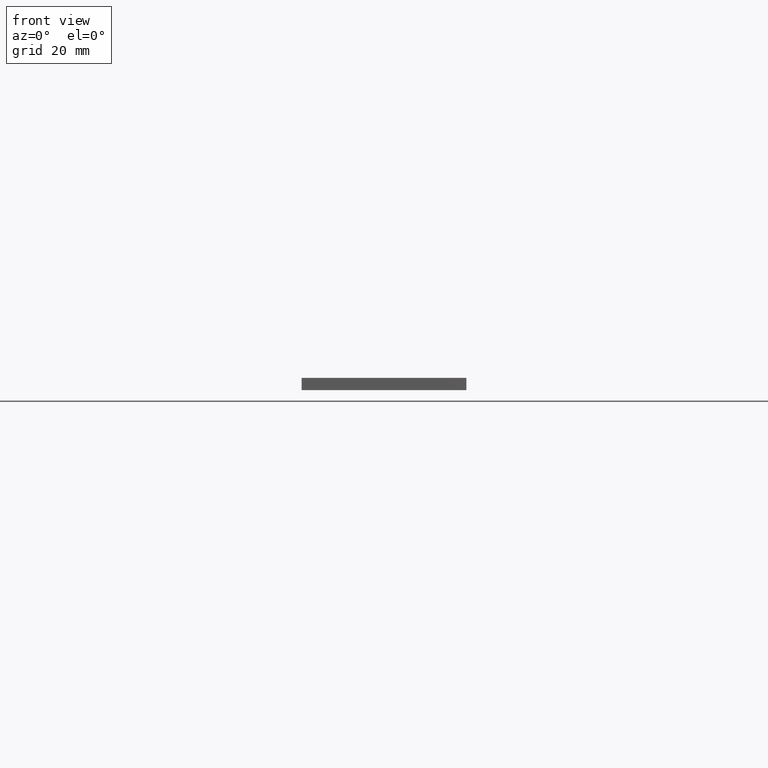
[diagram: clean part render]
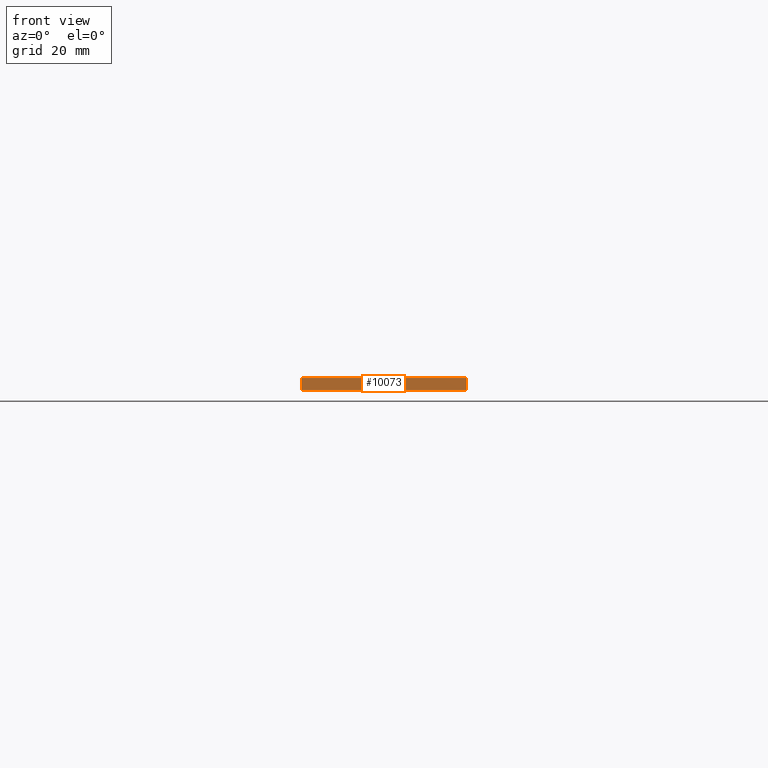
[diagram: same view with one face highlighted and labeled with its STEP entity id]
A machine part, front view. The second image highlights one B-rep face of the part: STEP entity #10073.
In plain terms, the highlighted planar face has unit normal (0, 1, 0).
Its self-contained STEP definition (entity closure, byte-faithful):
#663 = VECTOR ( 'NONE', #4678, 1000.000000000000000 ) ;
#869 = VERTEX_POINT ( 'NONE', #4589 ) ;
#1028 = VERTEX_POINT ( 'NONE', #5074 ) ;
#2348 = DIRECTION ( 'NONE',  ( -0.000000000000000000, -0.000000000000000000, -1.000000000000000000 ) ) ;
#2578 = FACE_OUTER_BOUND ( 'NONE', #9258, .T. ) ;
#3065 = ORIENTED_EDGE ( 'NONE', *, *, #14875, .T. ) ;
#3222 = CARTESIAN_POINT ( 'NONE',  ( 20.00000000000000355, -86.50000000000000000, 3.000000000000000000 ) ) ;
#3845 = LINE ( 'NONE', #14040, #11648 ) ;
#4281 = VERTEX_POINT ( 'NONE', #4304 ) ;
#4304 = CARTESIAN_POINT ( 'NONE',  ( 20.00000000000000355, -86.50000000000000000, 0.000000000000000000 ) ) ;
#4372 = DIRECTION ( 'NONE',  ( -0.000000000000000000, -0.000000000000000000, -1.000000000000000000 ) ) ;
#4589 = CARTESIAN_POINT ( 'NONE',  ( -19.99999999999999645, -86.50000000000000000, 0.000000000000000000 ) ) ;
#4678 = DIRECTION ( 'NONE',  ( 1.000000000000000000, 0.000000000000000000, 0.000000000000000000 ) ) ;
#5074 = CARTESIAN_POINT ( 'NONE',  ( -19.99999999999999645, -86.50000000000000000, 3.000000000000000000 ) ) ;
#6538 = VECTOR ( 'NONE', #7651, 1000.000000000000000 ) ;
#6951 = CARTESIAN_POINT ( 'NONE',  ( -19.99999999999999645, -86.50000000000000000, 3.000000000000000000 ) ) ;
#7651 = DIRECTION ( 'NONE',  ( 1.000000000000000000, 0.000000000000000000, 0.000000000000000000 ) ) ;
#8332 = CARTESIAN_POINT ( 'NONE',  ( 20.00000000000000355, -86.50000000000000000, 3.000000000000000000 ) ) ;
#8542 = EDGE_CURVE ( 'NONE', #13270, #4281, #14678, .T. ) ;
#8717 = VECTOR ( 'NONE', #4372, 1000.000000000000000 ) ;
#9258 = EDGE_LOOP ( 'NONE', ( #3065, #11594, #12796, #14987 ) ) ;
#10073 = ADVANCED_FACE ( 'NONE', ( #2578 ), #14698, .F. ) ;
#10987 = DIRECTION ( 'NONE',  ( 0.000000000000000000, -0.000000000000000000, 1.000000000000000000 ) ) ;
#11184 = CARTESIAN_POINT ( 'NONE',  ( -19.99999999999999645, -86.50000000000000000, 0.000000000000000000 ) ) ;
#11594 = ORIENTED_EDGE ( 'NONE', *, *, #8542, .F. ) ;
#11648 = VECTOR ( 'NONE', #2348, 1000.000000000000000 ) ;
#11977 = EDGE_CURVE ( 'NONE', #1028, #13270, #13684, .T. ) ;
#11978 = EDGE_CURVE ( 'NONE', #1028, #869, #3845, .T. ) ;
#12796 = ORIENTED_EDGE ( 'NONE', *, *, #11977, .F. ) ;
#13073 = LINE ( 'NONE', #11184, #6538 ) ;
#13270 = VERTEX_POINT ( 'NONE', #8332 ) ;
#13534 = DIRECTION ( 'NONE',  ( 0.000000000000000000, 1.000000000000000000, 0.000000000000000000 ) ) ;
#13684 = LINE ( 'NONE', #6951, #663 ) ;
#14040 = CARTESIAN_POINT ( 'NONE',  ( -19.99999999999999645, -86.50000000000000000, 3.000000000000000000 ) ) ;
#14590 = CARTESIAN_POINT ( 'NONE',  ( -19.99999999999999645, -86.50000000000000000, 3.000000000000000000 ) ) ;
#14678 = LINE ( 'NONE', #3222, #8717 ) ;
#14698 = PLANE ( 'NONE',  #14728 ) ;
#14728 = AXIS2_PLACEMENT_3D ( 'NONE', #14590, #13534, #10987 ) ;
#14875 = EDGE_CURVE ( 'NONE', #869, #4281, #13073, .T. ) ;
#14987 = ORIENTED_EDGE ( 'NONE', *, *, #11978, .T. ) ;